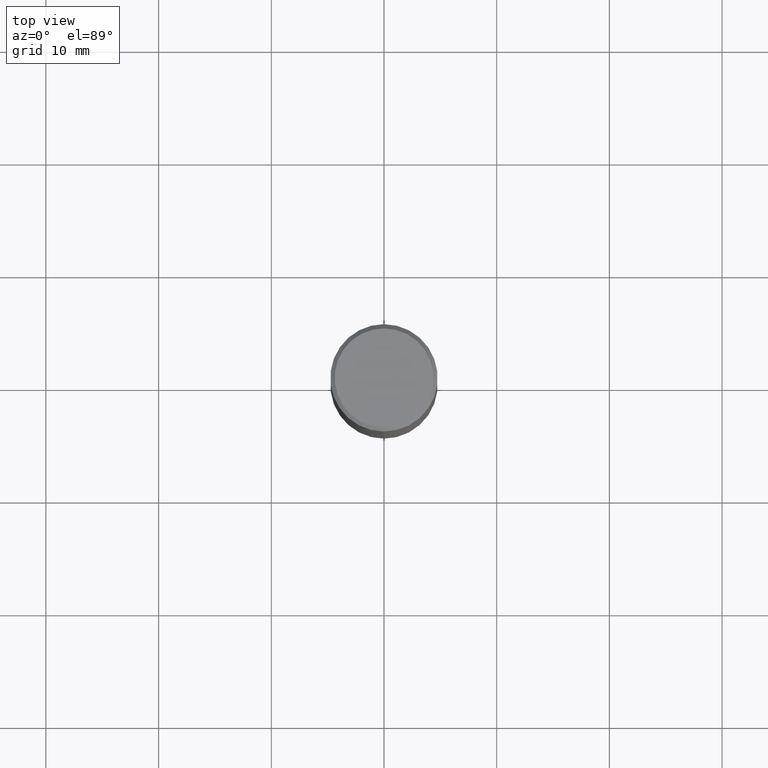
[diagram: clean part render]
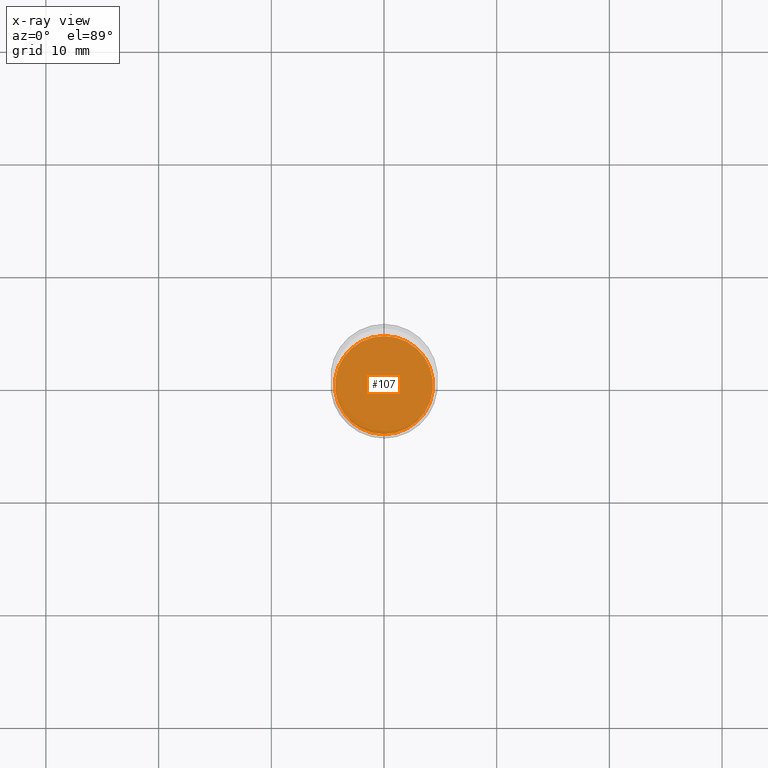
[diagram: x-ray — body ghosted, one internal face saturated and labeled with its STEP entity id]
A machine part, top view, then the same camera in x-ray: the body is ghosted and one INTERNAL B-rep face — a face not visible from any outside direction — is saturated and labeled: STEP entity #107.
In plain terms, the highlighted planar face has unit normal (-0, 0, 1).
Its self-contained STEP definition (entity closure, byte-faithful):
#16 = FACE_OUTER_BOUND ( 'NONE', #197, .T. ) ;
#51 = CARTESIAN_POINT ( 'NONE',  ( 3.667660301732476418E-29, -5.237999482769865382E-15, -1.500000000000000222 ) ) ;
#53 = CARTESIAN_POINT ( 'NONE',  ( 3.667660301732476418E-29, -5.237999482769865382E-15, -1.500000000000000222 ) ) ;
#55 = CIRCLE ( 'NONE', #476, 0.1713999999999999690 ) ;
#59 = CARTESIAN_POINT ( 'NONE',  ( 1.219646605932247841E-15, 0.1713999999999947510, -1.500000000000000666 ) ) ;
#62 = AXIS2_PLACEMENT_3D ( 'NONE', #120, #151, #390 ) ;
#81 = ORIENTED_EDGE ( 'NONE', *, *, #366, .F. ) ;
#106 = ORIENTED_EDGE ( 'NONE', *, *, #271, .F. ) ;
#107 = ADVANCED_FACE ( 'NONE', ( #16 ), #219, .F. ) ;
#120 = CARTESIAN_POINT ( 'NONE',  ( 3.667660301732476418E-29, -5.237999482769865382E-15, -1.500000000000000222 ) ) ;
#151 = DIRECTION ( 'NONE',  ( -2.445106867821650572E-29, 3.491999655179909992E-15, 1.000000000000000000 ) ) ;
#152 = VERTEX_POINT ( 'NONE', #59 ) ;
#175 = CARTESIAN_POINT ( 'NONE',  ( -1.196879802955389158E-15, -0.1714000000000052149, -1.499999999999999556 ) ) ;
#177 = DIRECTION ( 'NONE',  ( -2.445106867821650011E-29, 3.491999655179910386E-15, 1.000000000000000000 ) ) ;
#197 = EDGE_LOOP ( 'NONE', ( #106, #81 ) ) ;
#208 = DIRECTION ( 'NONE',  ( -2.445106867821650572E-29, 3.491999655179909992E-15, 1.000000000000000000 ) ) ;
#219 = PLANE ( 'NONE',  #467 ) ;
#271 = EDGE_CURVE ( 'NONE', #474, #152, #442, .T. ) ;
#366 = EDGE_CURVE ( 'NONE', #152, #474, #55, .T. ) ;
#390 = DIRECTION ( 'NONE',  ( -6.982962677686266711E-15, -1.000000000000000000, 3.187687273820611169E-15 ) ) ;
#408 = DIRECTION ( 'NONE',  ( -6.982962677686266711E-15, -1.000000000000000000, 3.187687273820611169E-15 ) ) ;
#442 = CIRCLE ( 'NONE', #62, 0.1713999999999999690 ) ;
#453 = DIRECTION ( 'NONE',  ( -6.982962677686265922E-15, -1.000000000000000000, 3.491999655179910386E-15 ) ) ;
#467 = AXIS2_PLACEMENT_3D ( 'NONE', #53, #177, #453 ) ;
#474 = VERTEX_POINT ( 'NONE', #175 ) ;
#476 = AXIS2_PLACEMENT_3D ( 'NONE', #51, #208, #408 ) ;